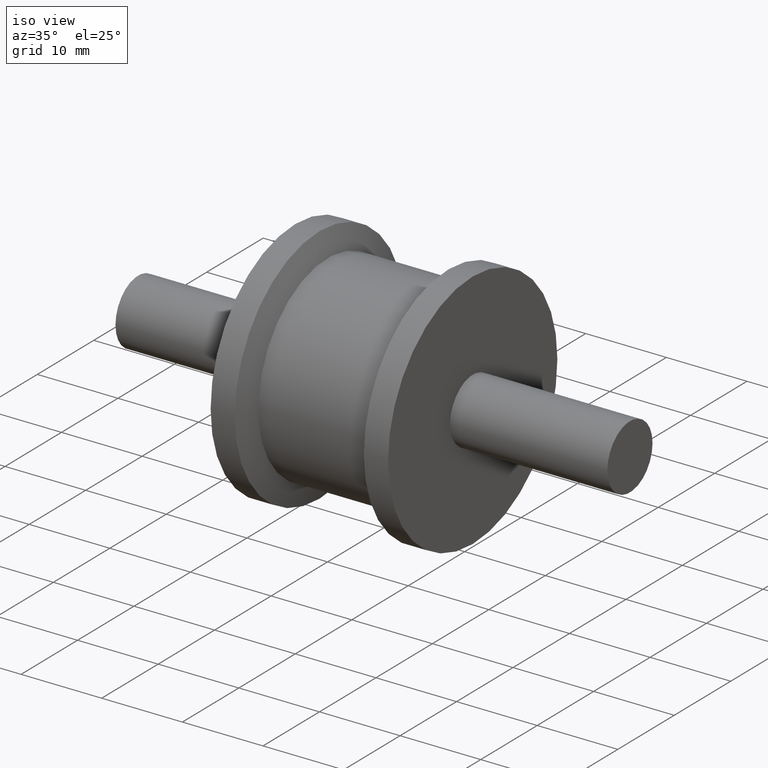
[diagram: clean part render]
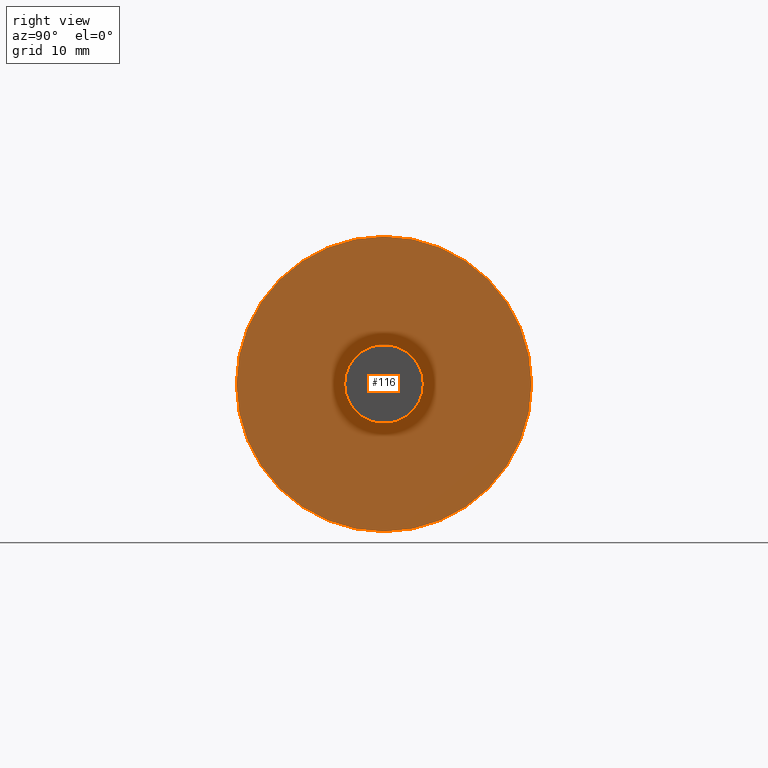
[diagram: tour spotlight — one face highlighted and labeled with its STEP entity id]
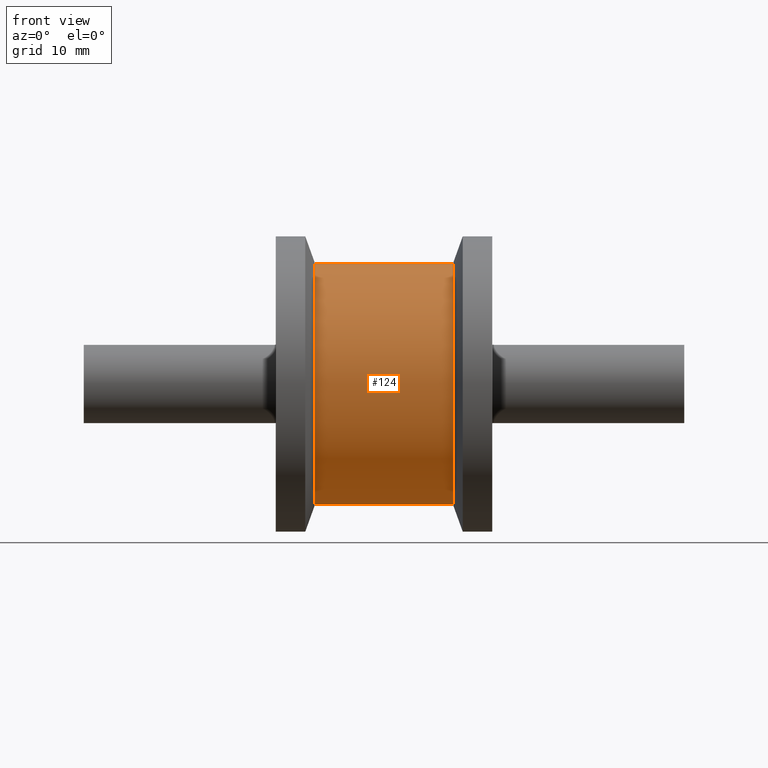
[diagram: tour spotlight — one face highlighted and labeled with its STEP entity id]
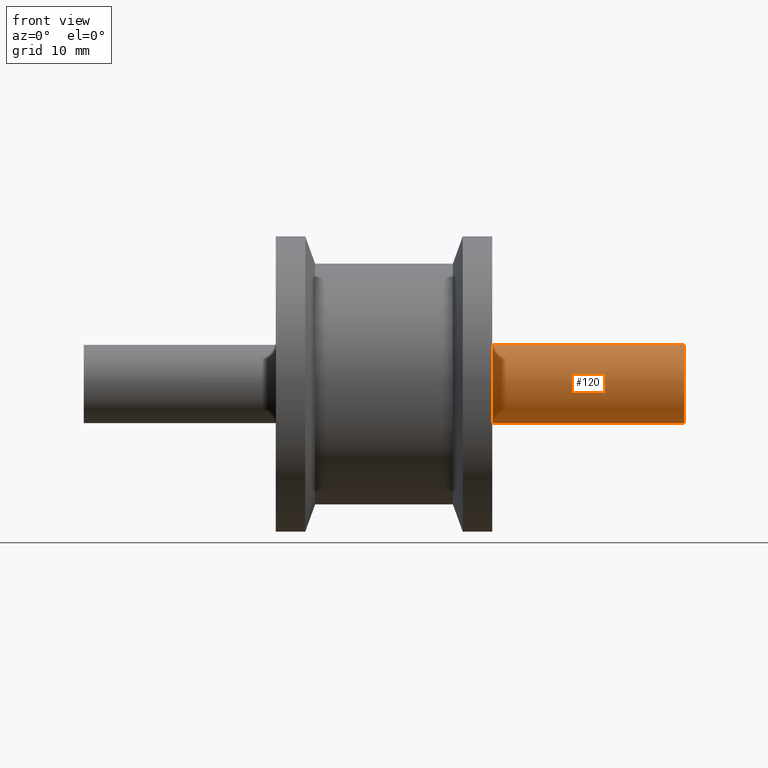
[diagram: tour spotlight — one face highlighted and labeled with its STEP entity id]
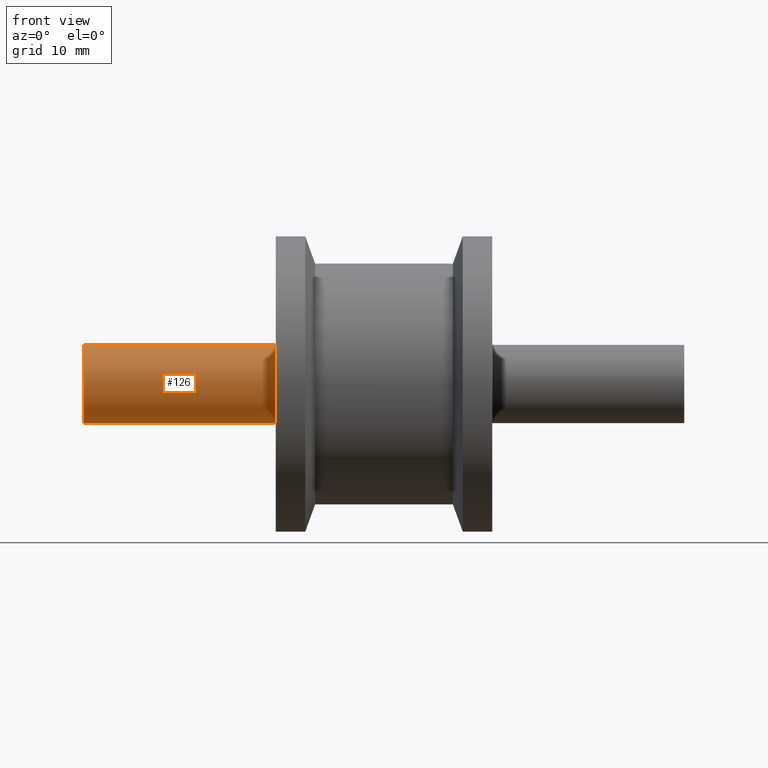
[diagram: tour spotlight — one face highlighted and labeled with its STEP entity id]
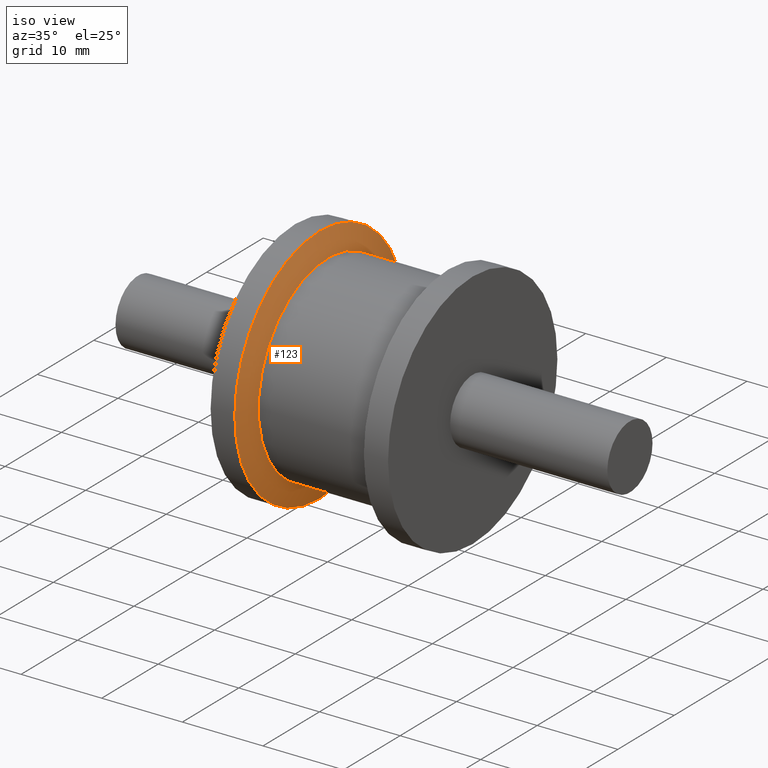
[diagram: tour spotlight — one face highlighted and labeled with its STEP entity id]
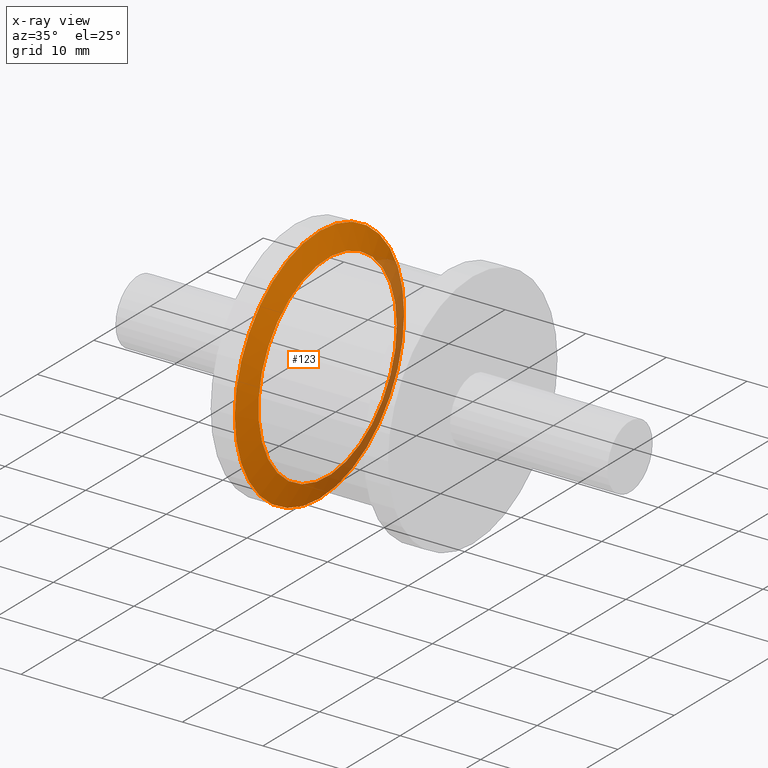
[diagram: x-ray of the same camera — body ghosted, this tour face saturated]
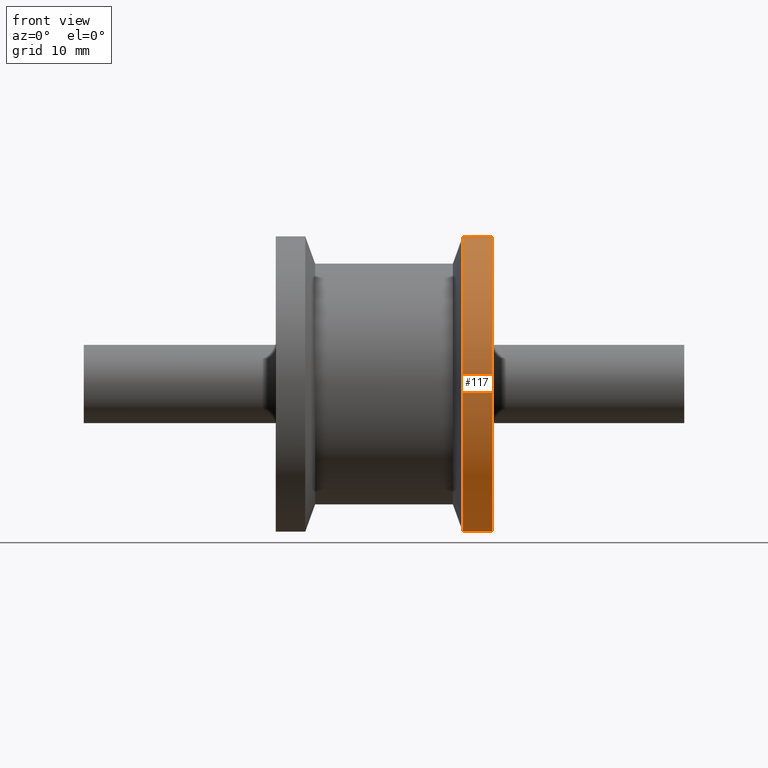
[diagram: tour spotlight — one face highlighted and labeled with its STEP entity id]
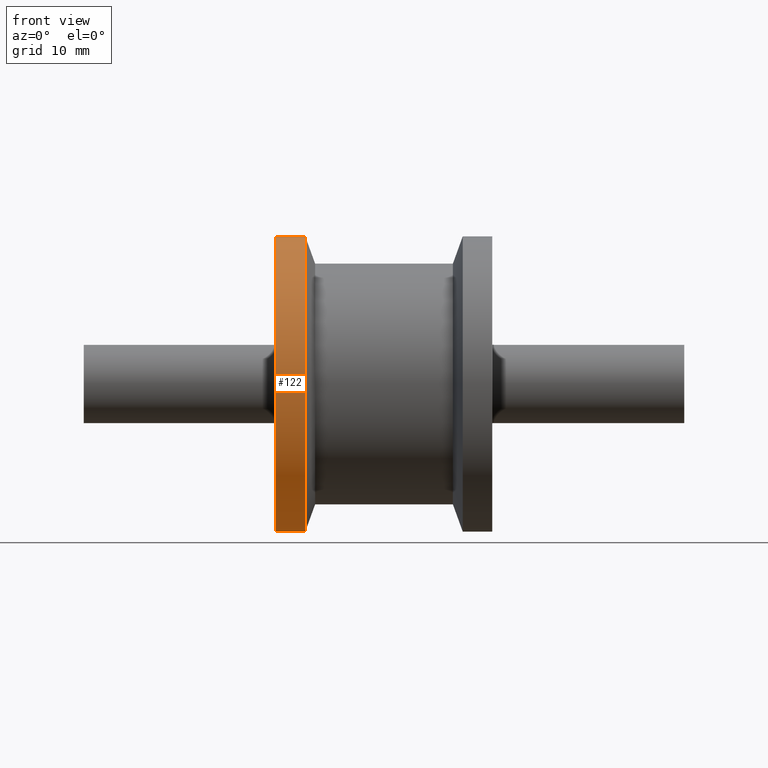
[diagram: tour spotlight — one face highlighted and labeled with its STEP entity id]
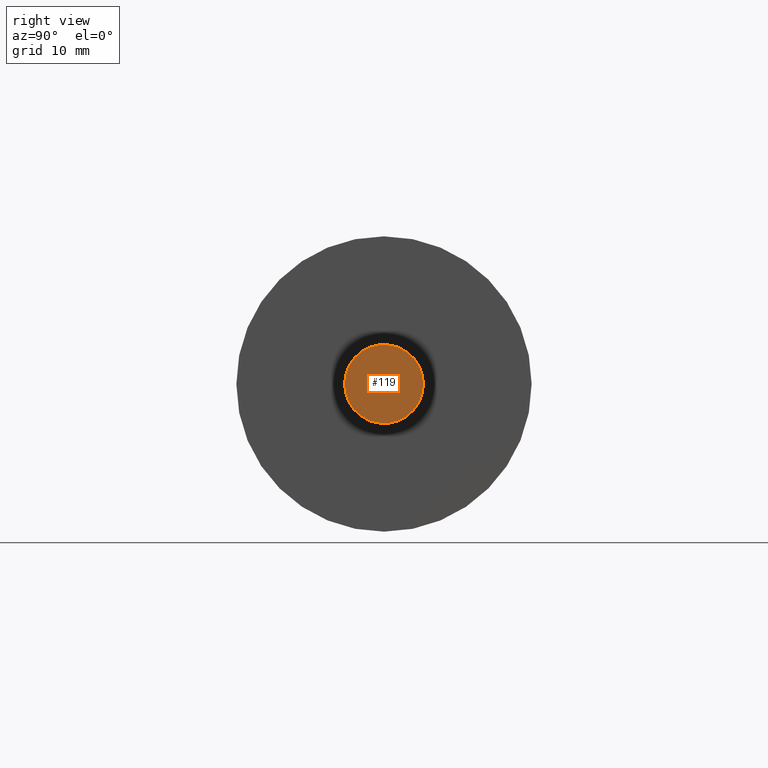
[diagram: tour spotlight — one face highlighted and labeled with its STEP entity id]
A machine part: a face-by-face anatomy tour. The part has 11 B-rep faces; the first image is the clean iso view, then the 8 largest visible faces are spotlighted one at a time (largest first), each with its STEP entity span.

Face 1 — right view, entity #116. In plain terms, the highlighted planar face has unit normal (-1, 0, 0).
Definition (entity closure, byte-faithful):
#22=FACE_BOUND('',#43,.T.);
#31=FACE_OUTER_BOUND('',#42,.T.);
#42=EDGE_LOOP('',(#92));
#43=EDGE_LOOP('',(#93));
#62=CIRCLE('',#130,15.);
#63=CIRCLE('',#131,4.);
#72=VERTEX_POINT('',#196);
#73=VERTEX_POINT('',#198);
#82=EDGE_CURVE('',#72,#72,#62,.T.);
#83=EDGE_CURVE('',#73,#73,#63,.T.);
#92=ORIENTED_EDGE('',*,*,#82,.T.);
#93=ORIENTED_EDGE('',*,*,#83,.F.);
#112=PLANE('',#129);
#116=ADVANCED_FACE('',(#31,#22),#112,.F.);
#129=AXIS2_PLACEMENT_3D('',#195,#152,#153);
#130=AXIS2_PLACEMENT_3D('',#197,#154,#155);
#131=AXIS2_PLACEMENT_3D('',#199,#156,#157);
#152=DIRECTION('center_axis',(-1.,1.78130443512342E-16,0.));
#153=DIRECTION('ref_axis',(0.,0.,1.));
#154=DIRECTION('center_axis',(1.,-1.78130443512342E-16,0.));
#155=DIRECTION('ref_axis',(0.,0.,-1.));
#156=DIRECTION('center_axis',(1.,-1.78130443512342E-16,0.));
#157=DIRECTION('ref_axis',(0.,0.,-1.));
#195=CARTESIAN_POINT('Origin',(11.,15.,0.));
#196=CARTESIAN_POINT('',(11.,15.,0.));
#197=CARTESIAN_POINT('Origin',(11.,-1.95943487863576E-15,0.));
#198=CARTESIAN_POINT('',(11.,4.,0.));
#199=CARTESIAN_POINT('Origin',(11.,-1.95943487863576E-15,0.));

Face 2 — front view, entity #124. In plain terms, the highlighted cylindrical surface (bore or boss wall) has radius 12.25 mm, axis along (1, -0, 0).
Definition (entity closure, byte-faithful):
#20=CYLINDRICAL_SURFACE('',#146,12.25);
#29=FACE_BOUND('',#58,.T.);
#39=FACE_OUTER_BOUND('',#57,.T.);
#57=EDGE_LOOP('',(#107));
#58=EDGE_LOOP('',(#108));
#65=CIRCLE('',#135,12.25);
#70=CIRCLE('',#145,12.25);
#75=VERTEX_POINT('',#204);
#80=VERTEX_POINT('',#219);
#85=EDGE_CURVE('',#75,#75,#65,.T.);
#90=EDGE_CURVE('',#80,#80,#70,.T.);
#107=ORIENTED_EDGE('',*,*,#85,.F.);
#108=ORIENTED_EDGE('',*,*,#90,.T.);
#124=ADVANCED_FACE('',(#39,#29),#20,.T.);
#135=AXIS2_PLACEMENT_3D('',#205,#164,#165);
#145=AXIS2_PLACEMENT_3D('',#220,#184,#185);
#146=AXIS2_PLACEMENT_3D('',#221,#186,#187);
#164=DIRECTION('center_axis',(1.,-1.78130443512342E-16,0.));
#165=DIRECTION('ref_axis',(0.,0.,-1.));
#184=DIRECTION('center_axis',(1.,-1.78130443512342E-16,0.));
#185=DIRECTION('ref_axis',(0.,0.,-1.));
#186=DIRECTION('center_axis',(1.,-1.78130443512342E-16,0.));
#187=DIRECTION('ref_axis',(1.78130443512342E-16,1.,0.));
#204=CARTESIAN_POINT('',(7.00000000000001,12.25,0.));
#205=CARTESIAN_POINT('Origin',(7.00000000000001,-1.2469131045864E-15,0.));
#219=CARTESIAN_POINT('',(-7.,12.25,0.));
#220=CARTESIAN_POINT('Origin',(-7.00000000000001,1.2469131045864E-15,0.));
#221=CARTESIAN_POINT('Origin',(-3.5,6.23456552293198E-16,0.));

Face 3 — front view, entity #120. In plain terms, the highlighted cylindrical surface (bore or boss wall) has radius 4 mm, axis along (1, -0, 0).
Definition (entity closure, byte-faithful):
#18=CYLINDRICAL_SURFACE('',#138,4.);
#25=FACE_BOUND('',#50,.T.);
#35=FACE_OUTER_BOUND('',#49,.T.);
#49=EDGE_LOOP('',(#99));
#50=EDGE_LOOP('',(#100));
#63=CIRCLE('',#131,4.);
#66=CIRCLE('',#137,4.);
#73=VERTEX_POINT('',#198);
#76=VERTEX_POINT('',#207);
#83=EDGE_CURVE('',#73,#73,#63,.T.);
#86=EDGE_CURVE('',#76,#76,#66,.T.);
#99=ORIENTED_EDGE('',*,*,#86,.F.);
#100=ORIENTED_EDGE('',*,*,#83,.T.);
#120=ADVANCED_FACE('',(#35,#25),#18,.T.);
#131=AXIS2_PLACEMENT_3D('',#199,#156,#157);
#137=AXIS2_PLACEMENT_3D('',#208,#168,#169);
#138=AXIS2_PLACEMENT_3D('',#209,#170,#171);
#156=DIRECTION('center_axis',(1.,-1.78130443512342E-16,0.));
#157=DIRECTION('ref_axis',(0.,0.,-1.));
#168=DIRECTION('center_axis',(1.,-1.78130443512342E-16,0.));
#169=DIRECTION('ref_axis',(0.,0.,-1.));
#170=DIRECTION('center_axis',(1.,-1.78130443512342E-16,0.));
#171=DIRECTION('ref_axis',(3.56260887024684E-16,1.,0.));
#198=CARTESIAN_POINT('',(11.,4.,0.));
#199=CARTESIAN_POINT('Origin',(11.,-1.95943487863576E-15,0.));
#207=CARTESIAN_POINT('',(30.5,3.99999999999999,0.));
#208=CARTESIAN_POINT('Origin',(30.5,-5.43297852712644E-15,0.));
#209=CARTESIAN_POINT('Origin',(20.75,-3.6962067028811E-15,0.));

Face 4 — front view, entity #126. In plain terms, the highlighted cylindrical surface (bore or boss wall) has radius 4 mm, axis along (1, -0, 0).
Definition (entity closure, byte-faithful):
#21=CYLINDRICAL_SURFACE('',#149,4.);
#30=FACE_BOUND('',#61,.T.);
#41=FACE_OUTER_BOUND('',#60,.T.);
#60=EDGE_LOOP('',(#110));
#61=EDGE_LOOP('',(#111));
#68=CIRCLE('',#141,4.);
#71=CIRCLE('',#148,4.);
#78=VERTEX_POINT('',#213);
#81=VERTEX_POINT('',#223);
#88=EDGE_CURVE('',#78,#78,#68,.T.);
#91=EDGE_CURVE('',#81,#81,#71,.T.);
#110=ORIENTED_EDGE('',*,*,#91,.T.);
#111=ORIENTED_EDGE('',*,*,#88,.F.);
#126=ADVANCED_FACE('',(#41,#30),#21,.T.);
#141=AXIS2_PLACEMENT_3D('',#214,#176,#177);
#148=AXIS2_PLACEMENT_3D('',#224,#190,#191);
#149=AXIS2_PLACEMENT_3D('',#225,#192,#193);
#176=DIRECTION('center_axis',(1.,-1.78130443512342E-16,0.));
#177=DIRECTION('ref_axis',(0.,0.,-1.));
#190=DIRECTION('center_axis',(1.,-1.78130443512342E-16,0.));
#191=DIRECTION('ref_axis',(0.,0.,-1.));
#192=DIRECTION('center_axis',(1.,-1.78130443512342E-16,0.));
#193=DIRECTION('ref_axis',(0.,1.,0.));
#213=CARTESIAN_POINT('',(-11.,4.00000000000001,0.));
#214=CARTESIAN_POINT('Origin',(-11.,1.95943487863576E-15,0.));
#223=CARTESIAN_POINT('',(-30.5,4.,0.));
#224=CARTESIAN_POINT('Origin',(-30.5,5.43297852712644E-15,0.));
#225=CARTESIAN_POINT('Origin',(-20.75,3.6962067028811E-15,0.));

Face 5 — iso view, entity #123. An x-ray twin of the same camera follows (body ghosted, this face saturated) — the face is partly hidden behind the body. In plain terms, the highlighted conical surface has half-angle 70.017 deg.
Definition (entity closure, byte-faithful):
#16=CONICAL_SURFACE('',#144,13.625,70.0168934780999);
#28=FACE_BOUND('',#56,.T.);
#38=FACE_OUTER_BOUND('',#55,.T.);
#55=EDGE_LOOP('',(#105));
#56=EDGE_LOOP('',(#106));
#69=CIRCLE('',#143,15.);
#70=CIRCLE('',#145,12.25);
#79=VERTEX_POINT('',#216);
#80=VERTEX_POINT('',#219);
#89=EDGE_CURVE('',#79,#79,#69,.T.);
#90=EDGE_CURVE('',#80,#80,#70,.T.);
#105=ORIENTED_EDGE('',*,*,#89,.T.);
#106=ORIENTED_EDGE('',*,*,#90,.F.);
#123=ADVANCED_FACE('',(#38,#28),#16,.T.);
#143=AXIS2_PLACEMENT_3D('',#217,#180,#181);
#144=AXIS2_PLACEMENT_3D('',#218,#182,#183);
#145=AXIS2_PLACEMENT_3D('',#220,#184,#185);
#180=DIRECTION('center_axis',(1.,-1.78130443512342E-16,0.));
#181=DIRECTION('ref_axis',(0.,0.,-1.));
#182=DIRECTION('center_axis',(-1.,1.78130443512342E-16,0.));
#183=DIRECTION('ref_axis',(1.78130443512342E-16,1.,0.));
#184=DIRECTION('center_axis',(1.,-1.78130443512342E-16,0.));
#185=DIRECTION('ref_axis',(0.,0.,-1.));
#216=CARTESIAN_POINT('',(-8.00000000000001,15.,0.));
#217=CARTESIAN_POINT('Origin',(-8.00000000000001,1.42504354809874E-15,0.));
#218=CARTESIAN_POINT('Origin',(-7.50000000000001,1.33597832634257E-15,0.));
#219=CARTESIAN_POINT('',(-7.,12.25,0.));
#220=CARTESIAN_POINT('Origin',(-7.00000000000001,1.2469131045864E-15,0.));

Face 6 — front view, entity #117. In plain terms, the highlighted cylindrical surface (bore or boss wall) has radius 15 mm, axis along (1, -0, 0).
Definition (entity closure, byte-faithful):
#17=CYLINDRICAL_SURFACE('',#132,15.);
#23=FACE_BOUND('',#45,.T.);
#32=FACE_OUTER_BOUND('',#44,.T.);
#44=EDGE_LOOP('',(#94));
#45=EDGE_LOOP('',(#95));
#62=CIRCLE('',#130,15.);
#64=CIRCLE('',#133,15.);
#72=VERTEX_POINT('',#196);
#74=VERTEX_POINT('',#201);
#82=EDGE_CURVE('',#72,#72,#62,.T.);
#84=EDGE_CURVE('',#74,#74,#64,.T.);
#94=ORIENTED_EDGE('',*,*,#82,.F.);
#95=ORIENTED_EDGE('',*,*,#84,.T.);
#117=ADVANCED_FACE('',(#32,#23),#17,.T.);
#130=AXIS2_PLACEMENT_3D('',#197,#154,#155);
#132=AXIS2_PLACEMENT_3D('',#200,#158,#159);
#133=AXIS2_PLACEMENT_3D('',#202,#160,#161);
#154=DIRECTION('center_axis',(1.,-1.78130443512342E-16,0.));
#155=DIRECTION('ref_axis',(0.,0.,-1.));
#158=DIRECTION('center_axis',(1.,-1.78130443512342E-16,0.));
#159=DIRECTION('ref_axis',(1.78130443512342E-16,1.,0.));
#160=DIRECTION('center_axis',(1.,-1.78130443512342E-16,0.));
#161=DIRECTION('ref_axis',(0.,0.,-1.));
#196=CARTESIAN_POINT('',(11.,15.,0.));
#197=CARTESIAN_POINT('Origin',(11.,-1.95943487863576E-15,0.));
#200=CARTESIAN_POINT('Origin',(9.50000000000001,-1.69223921336725E-15,0.));
#201=CARTESIAN_POINT('',(8.00000000000001,15.,0.));
#202=CARTESIAN_POINT('Origin',(8.00000000000001,-1.42504354809874E-15,0.));

Face 7 — front view, entity #122. In plain terms, the highlighted cylindrical surface (bore or boss wall) has radius 15 mm, axis along (1, -0, 0).
Definition (entity closure, byte-faithful):
#19=CYLINDRICAL_SURFACE('',#142,15.);
#27=FACE_BOUND('',#54,.T.);
#37=FACE_OUTER_BOUND('',#53,.T.);
#53=EDGE_LOOP('',(#103));
#54=EDGE_LOOP('',(#104));
#67=CIRCLE('',#140,15.);
#69=CIRCLE('',#143,15.);
#77=VERTEX_POINT('',#211);
#79=VERTEX_POINT('',#216);
#87=EDGE_CURVE('',#77,#77,#67,.T.);
#89=EDGE_CURVE('',#79,#79,#69,.T.);
#103=ORIENTED_EDGE('',*,*,#87,.T.);
#104=ORIENTED_EDGE('',*,*,#89,.F.);
#122=ADVANCED_FACE('',(#37,#27),#19,.T.);
#140=AXIS2_PLACEMENT_3D('',#212,#174,#175);
#142=AXIS2_PLACEMENT_3D('',#215,#178,#179);
#143=AXIS2_PLACEMENT_3D('',#217,#180,#181);
#174=DIRECTION('center_axis',(1.,-1.78130443512342E-16,0.));
#175=DIRECTION('ref_axis',(0.,0.,-1.));
#178=DIRECTION('center_axis',(1.,-1.78130443512342E-16,0.));
#179=DIRECTION('ref_axis',(1.78130443512342E-16,1.,0.));
#180=DIRECTION('center_axis',(1.,-1.78130443512342E-16,0.));
#181=DIRECTION('ref_axis',(0.,0.,-1.));
#211=CARTESIAN_POINT('',(-11.,15.,0.));
#212=CARTESIAN_POINT('Origin',(-11.,1.95943487863576E-15,0.));
#215=CARTESIAN_POINT('Origin',(-9.50000000000001,1.69223921336725E-15,0.));
#216=CARTESIAN_POINT('',(-8.00000000000001,15.,0.));
#217=CARTESIAN_POINT('Origin',(-8.00000000000001,1.42504354809874E-15,0.));

Face 8 — right view, entity #119. In plain terms, the highlighted planar face has unit normal (-1, 0, 0).
Definition (entity closure, byte-faithful):
#34=FACE_OUTER_BOUND('',#48,.T.);
#48=EDGE_LOOP('',(#98));
#66=CIRCLE('',#137,4.);
#76=VERTEX_POINT('',#207);
#86=EDGE_CURVE('',#76,#76,#66,.T.);
#98=ORIENTED_EDGE('',*,*,#86,.T.);
#113=PLANE('',#136);
#119=ADVANCED_FACE('',(#34),#113,.F.);
#136=AXIS2_PLACEMENT_3D('',#206,#166,#167);
#137=AXIS2_PLACEMENT_3D('',#208,#168,#169);
#166=DIRECTION('center_axis',(-1.,1.78130443512342E-16,0.));
#167=DIRECTION('ref_axis',(0.,0.,1.));
#168=DIRECTION('center_axis',(1.,-1.78130443512342E-16,0.));
#169=DIRECTION('ref_axis',(0.,0.,-1.));
#206=CARTESIAN_POINT('Origin',(30.5,3.99999999999999,0.));
#207=CARTESIAN_POINT('',(30.5,3.99999999999999,0.));
#208=CARTESIAN_POINT('Origin',(30.5,-5.43297852712644E-15,0.));